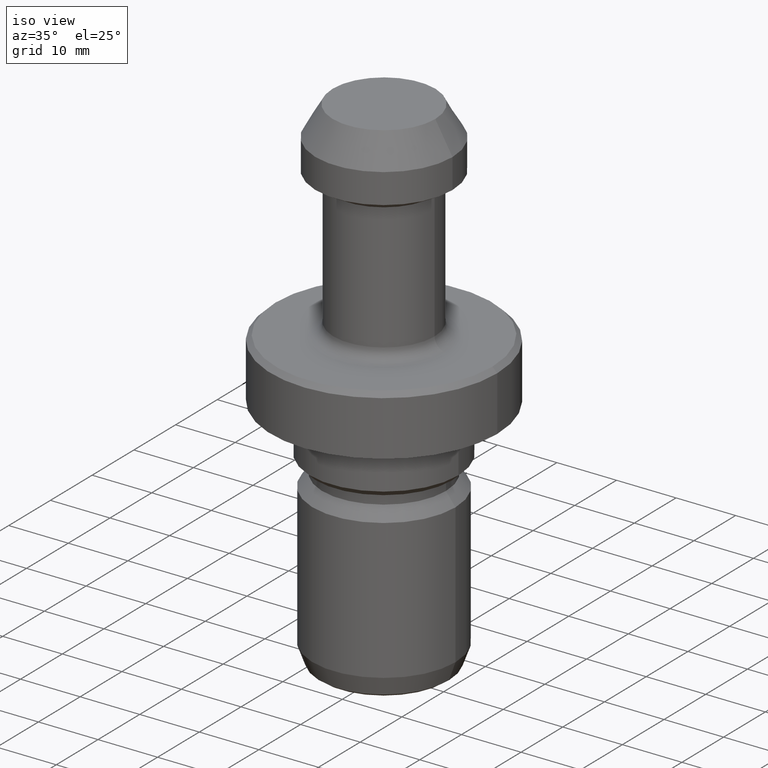
[diagram: clean part render]
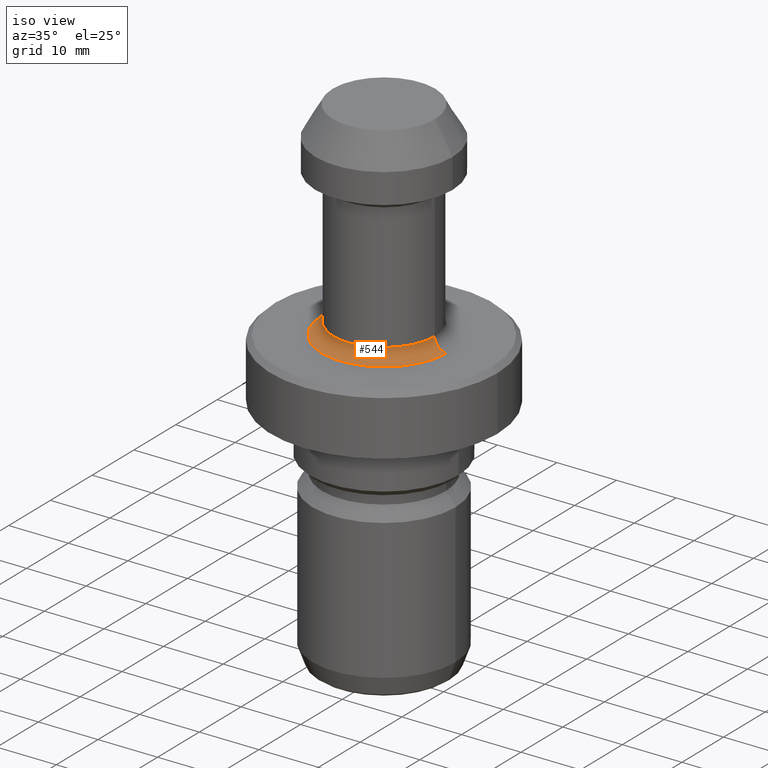
[diagram: same view with one face highlighted and labeled with its STEP entity id]
A machine part, iso view. The second image highlights one B-rep face of the part: STEP entity #544.
In plain terms, the highlighted toroidal blend (fillet) surface has major radius 10.5 mm and minor (blend) radius 2 mm.
Its self-contained STEP definition (entity closure, byte-faithful):
#22 = DIRECTION ( 'NONE',  ( 1.000000000000000000, 0.0000000000000000000, 0.0000000000000000000 ) ) ;
#35 = VERTEX_POINT ( 'NONE', #998 ) ;
#71 = ORIENTED_EDGE ( 'NONE', *, *, #675, .T. ) ;
#96 = CARTESIAN_POINT ( 'NONE',  ( 0.0000000000000000000, 0.0000000000000000000, -34.99999999999999300 ) ) ;
#107 = EDGE_LOOP ( 'NONE', ( #297, #657, #71, #764 ) ) ;
#117 = EDGE_CURVE ( 'NONE', #35, #371, #359, .T. ) ;
#122 = CIRCLE ( 'NONE', #197, 10.50000000000000000 ) ;
#128 = DIRECTION ( 'NONE',  ( 1.000000000000000000, 0.0000000000000000000, 0.0000000000000000000 ) ) ;
#132 = AXIS2_PLACEMENT_3D ( 'NONE', #508, #503, #236 ) ;
#197 = AXIS2_PLACEMENT_3D ( 'NONE', #96, #902, #22 ) ;
#208 = TOROIDAL_SURFACE ( 'NONE', #1139, 10.50000000000000000, 2.000000000000000000 ) ;
#236 = DIRECTION ( 'NONE',  ( 0.0000000000000000000, 0.0000000000000000000, -1.000000000000000000 ) ) ;
#257 = CIRCLE ( 'NONE', #132, 2.000000000000001800 ) ;
#296 = AXIS2_PLACEMENT_3D ( 'NONE', #844, #488, #128 ) ;
#297 = ORIENTED_EDGE ( 'NONE', *, *, #412, .F. ) ;
#317 = CIRCLE ( 'NONE', #296, 8.500000000000001800 ) ;
#359 = CIRCLE ( 'NONE', #937, 2.000000000000000000 ) ;
#371 = VERTEX_POINT ( 'NONE', #645 ) ;
#412 = EDGE_CURVE ( 'NONE', #35, #635, #317, .T. ) ;
#451 = CARTESIAN_POINT ( 'NONE',  ( 10.50000000000000000, 0.0000000000000000000, -34.99999999999999300 ) ) ;
#474 = FACE_OUTER_BOUND ( 'NONE', #107, .T. ) ;
#488 = DIRECTION ( 'NONE',  ( -0.0000000000000000000, -0.0000000000000000000, 1.000000000000000000 ) ) ;
#490 = DIRECTION ( 'NONE',  ( -1.000000000000000000, 1.224646799147353500E-016, 0.0000000000000000000 ) ) ;
#503 = DIRECTION ( 'NONE',  ( 0.0000000000000000000, -1.000000000000000000, 0.0000000000000000000 ) ) ;
#508 = CARTESIAN_POINT ( 'NONE',  ( 10.50000000000000000, 0.0000000000000000000, -32.99999999999998600 ) ) ;
#544 = ADVANCED_FACE ( 'NONE', ( #474 ), #208, .F. ) ;
#594 = DIRECTION ( 'NONE',  ( 1.224646799147353200E-016, 1.000000000000000000, 0.0000000000000000000 ) ) ;
#606 = DIRECTION ( 'NONE',  ( -0.0000000000000000000, -0.0000000000000000000, 1.000000000000000000 ) ) ;
#635 = VERTEX_POINT ( 'NONE', #727 ) ;
#645 = CARTESIAN_POINT ( 'NONE',  ( -10.50000000000000000, 1.285879139104720800E-015, -34.99999999999999300 ) ) ;
#657 = ORIENTED_EDGE ( 'NONE', *, *, #117, .T. ) ;
#675 = EDGE_CURVE ( 'NONE', #371, #701, #122, .T. ) ;
#698 = CARTESIAN_POINT ( 'NONE',  ( 0.0000000000000000000, 0.0000000000000000000, -32.99999999999998600 ) ) ;
#701 = VERTEX_POINT ( 'NONE', #451 ) ;
#727 = CARTESIAN_POINT ( 'NONE',  ( 8.500000000000001800, 0.0000000000000000000, -32.99999999999998600 ) ) ;
#764 = ORIENTED_EDGE ( 'NONE', *, *, #1015, .F. ) ;
#781 = CARTESIAN_POINT ( 'NONE',  ( -10.50000000000000000, 1.285879139104720800E-015, -32.99999999999998600 ) ) ;
#844 = CARTESIAN_POINT ( 'NONE',  ( 0.0000000000000000000, 0.0000000000000000000, -32.99999999999998600 ) ) ;
#888 = DIRECTION ( 'NONE',  ( 1.000000000000000000, 0.0000000000000000000, 0.0000000000000000000 ) ) ;
#902 = DIRECTION ( 'NONE',  ( -0.0000000000000000000, -0.0000000000000000000, 1.000000000000000000 ) ) ;
#937 = AXIS2_PLACEMENT_3D ( 'NONE', #781, #594, #490 ) ;
#998 = CARTESIAN_POINT ( 'NONE',  ( -8.500000000000001800, 1.163414459189985900E-015, -32.99999999999998600 ) ) ;
#1015 = EDGE_CURVE ( 'NONE', #635, #701, #257, .T. ) ;
#1139 = AXIS2_PLACEMENT_3D ( 'NONE', #698, #606, #888 ) ;